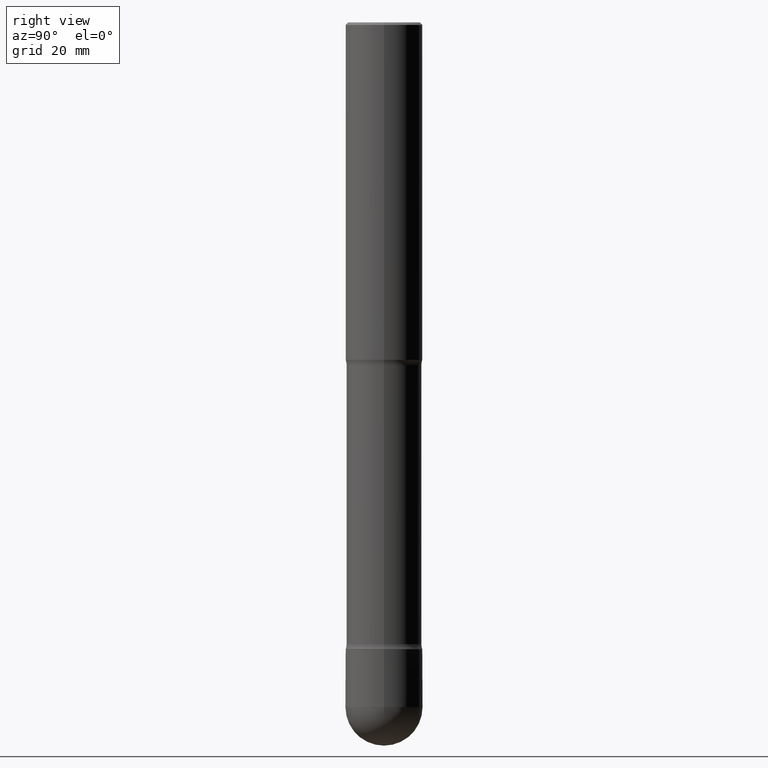
[diagram: clean part render]
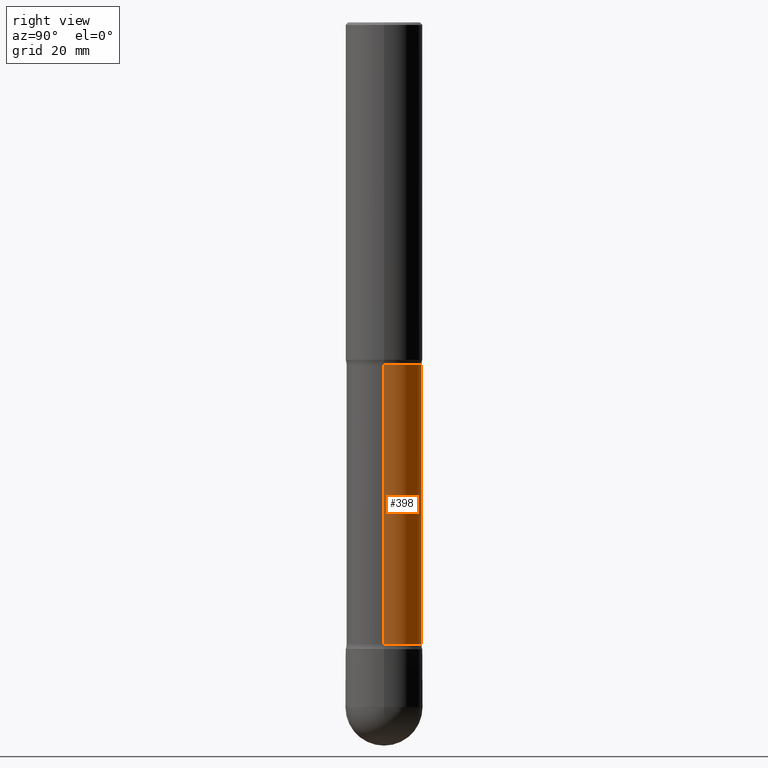
[diagram: same view with one face highlighted and labeled with its STEP entity id]
A machine part, right view. The second image highlights one B-rep face of the part: STEP entity #398.
In plain terms, the highlighted cylindrical surface (partial cylindrical patch) has radius 7.8092 mm, axis along (0, -0, -1).
Its self-contained STEP definition (entity closure, byte-faithful):
#1 = VERTEX_POINT ( 'NONE', #215 ) ;
#22 = CARTESIAN_POINT ( 'NONE',  ( -0.3074499999999993349, -1.572283876507846399E-14, -5.118099999999999206 ) ) ;
#24 = ORIENTED_EDGE ( 'NONE', *, *, #488, .T. ) ;
#27 = CARTESIAN_POINT ( 'NONE',  ( 0.3074499999999993349, -1.997901074974795605E-14, -5.118099999999999206 ) ) ;
#52 = CYLINDRICAL_SURFACE ( 'NONE', #221, 0.3074499999999993349 ) ;
#102 = DIRECTION ( 'NONE',  ( 2.445468806185136597E-29, -3.491481338843145583E-15, -1.000000000000000000 ) ) ;
#143 = VECTOR ( 'NONE', #289, 39.37007874015748143 ) ;
#178 = AXIS2_PLACEMENT_3D ( 'NONE', #201, #538, #413 ) ;
#183 = CARTESIAN_POINT ( 'NONE',  ( 6.843758914944387642E-29, -9.771073946490062515E-15, -2.798546805273080640 ) ) ;
#185 = LINE ( 'NONE', #22, #143 ) ;
#197 = CARTESIAN_POINT ( 'NONE',  ( 0.3074499999999996125, -1.585522214044031702E-14, -5.075453194726919470 ) ) ;
#201 = CARTESIAN_POINT ( 'NONE',  ( 1.241186246495737745E-28, -1.772085011556086905E-14, -5.075453194726919470 ) ) ;
#215 = CARTESIAN_POINT ( 'NONE',  ( -0.3074499999999996125, -1.557393824030622744E-14, -5.075453194726919470 ) ) ;
#216 = CARTESIAN_POINT ( 'NONE',  ( 1.251615389693614574E-28, -1.786975064033310244E-14, -5.118099999999999206 ) ) ;
#221 = AXIS2_PLACEMENT_3D ( 'NONE', #216, #563, #260 ) ;
#226 = EDGE_CURVE ( 'NONE', #391, #522, #337, .T. ) ;
#229 = VERTEX_POINT ( 'NONE', #452 ) ;
#231 = CIRCLE ( 'NONE', #561, 0.3074499999999991129 ) ;
#238 = DIRECTION ( 'NONE',  ( 2.445468806185136877E-29, -3.491481338843145188E-15, -1.000000000000000000 ) ) ;
#260 = DIRECTION ( 'NONE',  ( -1.000000000000000000, 6.982962677686269077E-15, 0.000000000000000000 ) ) ;
#273 = EDGE_CURVE ( 'NONE', #1, #522, #545, .T. ) ;
#289 = DIRECTION ( 'NONE',  ( 2.445468806185136877E-29, -3.491481338843145188E-15, -1.000000000000000000 ) ) ;
#304 = ORIENTED_EDGE ( 'NONE', *, *, #500, .F. ) ;
#332 = EDGE_LOOP ( 'NONE', ( #24, #416, #423, #304 ) ) ;
#337 = LINE ( 'NONE', #27, #376 ) ;
#353 = DIRECTION ( 'NONE',  ( -1.000000000000000000, 6.982962677686268288E-15, 0.000000000000000000 ) ) ;
#376 = VECTOR ( 'NONE', #238, 39.37007874015748143 ) ;
#389 = CARTESIAN_POINT ( 'NONE',  ( 0.3074499999999991129, -1.183161066101044135E-14, -2.798546805273080640 ) ) ;
#391 = VERTEX_POINT ( 'NONE', #389 ) ;
#398 = ADVANCED_FACE ( 'NONE', ( #437 ), #52, .T. ) ;
#413 = DIRECTION ( 'NONE',  ( -1.000000000000000000, 6.982962677686262766E-15, 0.000000000000000000 ) ) ;
#416 = ORIENTED_EDGE ( 'NONE', *, *, #226, .T. ) ;
#423 = ORIENTED_EDGE ( 'NONE', *, *, #273, .F. ) ;
#437 = FACE_OUTER_BOUND ( 'NONE', #332, .T. ) ;
#452 = CARTESIAN_POINT ( 'NONE',  ( -0.3074499999999991129, -7.624162071235425640E-15, -2.798546805273080640 ) ) ;
#488 = EDGE_CURVE ( 'NONE', #229, #391, #231, .T. ) ;
#500 = EDGE_CURVE ( 'NONE', #229, #1, #185, .T. ) ;
#522 = VERTEX_POINT ( 'NONE', #197 ) ;
#538 = DIRECTION ( 'NONE',  ( 2.445468806185136597E-29, -3.491481338843145583E-15, -1.000000000000000000 ) ) ;
#545 = CIRCLE ( 'NONE', #178, 0.3074499999999996125 ) ;
#561 = AXIS2_PLACEMENT_3D ( 'NONE', #183, #102, #353 ) ;
#563 = DIRECTION ( 'NONE',  ( 2.445468806185136597E-29, -3.491481338843145583E-15, -1.000000000000000000 ) ) ;